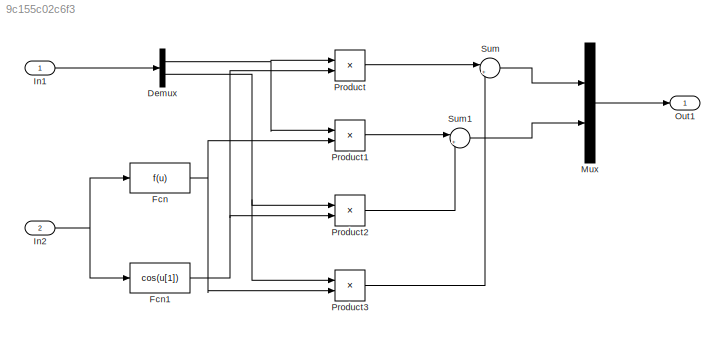
MODEL slx_9c155c02c6f3
KIND model
CONFIG AbsTol = auto
CONFIG EnableMultiTasking = off
CONFIG FixedStep = auto
CONFIG MaxStep = auto
CONFIG MinStep = auto
CONFIG RelTol = 1e-3
CONFIG SampleTimeConstraint = Unconstrained
CONFIG SolverName = VariableStepAuto
CONFIG StartTime = 0.0
CONFIG StopTime = 10.0
BLOCK [Demux] Demux
  Outputs = 2
  Ports = [1, 2]
BLOCK [Fcn] Fcn
BLOCK [Fcn] Fcn1
  Expr = cos(u[1])
BLOCK [Inport] In1
  OutDataTypeStr = double
  PortDimensions = 2
  SampleTime = 0
  SamplingMode = Sample based
  SignalType = real
BLOCK [Inport] In2
  OutDataTypeStr = double
  Port = 2
  PortDimensions = 1
  SampleTime = 0
  SamplingMode = Sample based
  SignalType = real
BLOCK [Mux] Mux
  DisplayOption = bar
  Inputs = 2
  Ports = [2, 1]
BLOCK [Outport] Out1
  OutDataTypeStr = double
  PortDimensions = 2
  SampleTime = 0
  SamplingMode = Sample based
  SignalType = real
BLOCK [Product] Product
  Ports = [2, 1]
BLOCK [Product] Product1
  Ports = [2, 1]
BLOCK [Product] Product2
  Ports = [2, 1]
BLOCK [Product] Product3
  Ports = [2, 1]
BLOCK [Sum] Sum
  Inputs = |++
  Ports = [2, 1]
BLOCK [Sum] Sum1
  Inputs = |+-
  Ports = [2, 1]
NET Demux:1 -> Product1:1, Product:1
NET Demux:2 -> Product2:1, Product3:1
NET Fcn1:1 -> Product2:2, Product:2
NET Fcn:1 -> Product1:2, Product3:2
LINE In1:1 -> Demux:1
NET In2:1 -> Fcn1:1, Fcn:1
LINE Mux:1 -> Out1:1
LINE Product1:1 -> Sum1:1
LINE Product2:1 -> Sum1:2
LINE Product3:1 -> Sum:2
LINE Product:1 -> Sum:1
LINE Sum1:1 -> Mux:2
LINE Sum:1 -> Mux:1
note: NET lines group one-source signal fan-out (src -> all destinations, sorted); 1:1 wires keep LINE
